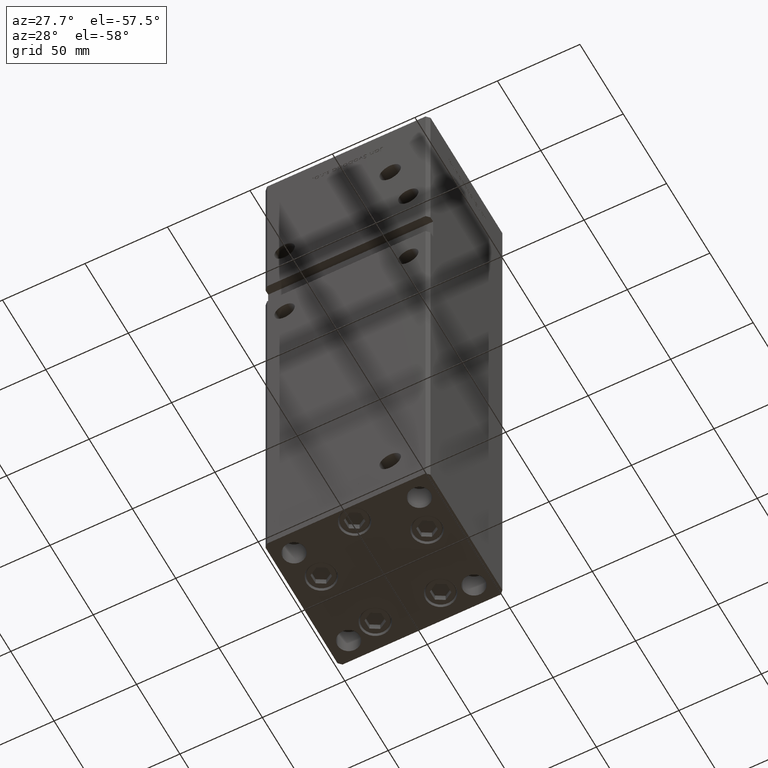
[diagram: clean part render]
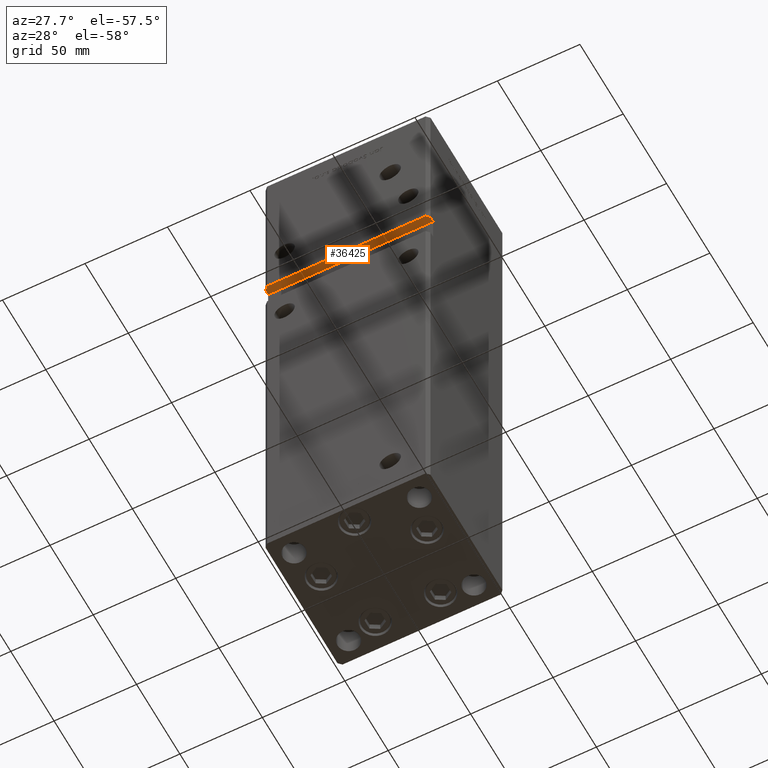
[diagram: same view with one face highlighted and labeled with its STEP entity id]
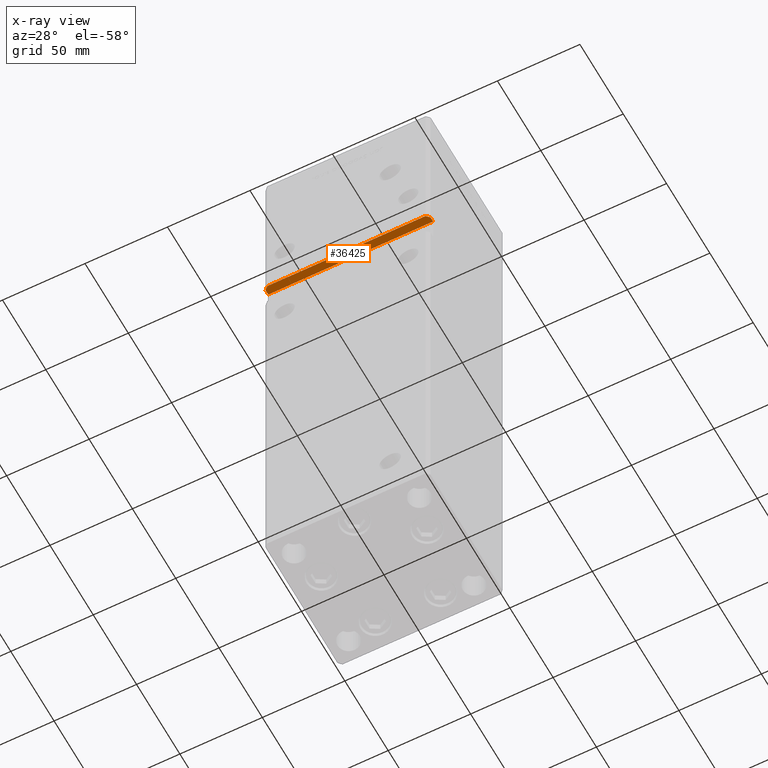
[diagram: x-ray of the same camera — body ghosted, the highlighted face saturated]
A machine part, auxiliary view. The second image highlights one B-rep face of the part: STEP entity #36425.
The next image is the same camera in x-ray: the body ghosted, the highlighted face saturated — about 0% of this face is hidden behind the body in this view.
In plain terms, the highlighted planar face has unit normal (0, 0, 1).
Its self-contained STEP definition (entity closure, byte-faithful):
#99 = VERTEX_POINT ( 'NONE', #20985 ) ;
#1074 = CARTESIAN_POINT ( 'NONE',  ( 47.99999999999995737, -43.50000000000000000, 238.0000000000000284 ) ) ;
#1755 = CARTESIAN_POINT ( 'NONE',  ( 50.00000000000000000, -38.50000000000000000, 238.0000000000000284 ) ) ;
#2436 = EDGE_CURVE ( 'NONE', #30419, #50637, #19489, .T. ) ;
#2713 = DIRECTION ( 'NONE',  ( -0.7071067811865474617, -0.7071067811865474617, 0.000000000000000000 ) ) ;
#4947 = VECTOR ( 'NONE', #40196, 1000.000000000000114 ) ;
#6646 = ORIENTED_EDGE ( 'NONE', *, *, #2436, .F. ) ;
#6835 = VERTEX_POINT ( 'NONE', #38174 ) ;
#7222 = CARTESIAN_POINT ( 'NONE',  ( -49.99999999999998579, -43.50000000000000000, 238.0000000000000284 ) ) ;
#8584 = DIRECTION ( 'NONE',  ( -1.000000000000000000, -0.000000000000000000, -0.000000000000000000 ) ) ;
#9244 = DIRECTION ( 'NONE',  ( -0.000000000000000000, -1.000000000000000000, -0.000000000000000000 ) ) ;
#9792 = AXIS2_PLACEMENT_3D ( 'NONE', #28265, #41187, #24232 ) ;
#10732 = DIRECTION ( 'NONE',  ( -1.000000000000000000, -0.000000000000000000, -0.000000000000000000 ) ) ;
#10989 = LINE ( 'NONE', #7222, #31087 ) ;
#11980 = EDGE_CURVE ( 'NONE', #21378, #6835, #29271, .T. ) ;
#12150 = FACE_OUTER_BOUND ( 'NONE', #33666, .T. ) ;
#13538 = CARTESIAN_POINT ( 'NONE',  ( -49.99999999999998579, -38.50000000000000000, 238.0000000000000284 ) ) ;
#17536 = VECTOR ( 'NONE', #9244, 1000.000000000000000 ) ;
#19489 = LINE ( 'NONE', #43700, #4947 ) ;
#20985 = CARTESIAN_POINT ( 'NONE',  ( 50.00000000000000000, -41.49999999999999289, 238.0000000000000284 ) ) ;
#21378 = VERTEX_POINT ( 'NONE', #27215 ) ;
#24232 = DIRECTION ( 'NONE',  ( 1.000000000000000000, 0.000000000000000000, -0.000000000000000000 ) ) ;
#24430 = EDGE_CURVE ( 'NONE', #49712, #50637, #10989, .T. ) ;
#24781 = PLANE ( 'NONE',  #9792 ) ;
#26071 = CARTESIAN_POINT ( 'NONE',  ( -49.99999999999998579, -41.49999999999999289, 238.0000000000000284 ) ) ;
#26161 = LINE ( 'NONE', #13538, #17536 ) ;
#27215 = CARTESIAN_POINT ( 'NONE',  ( 50.00000000000000000, -38.50000000000000000, 238.0000000000000284 ) ) ;
#27386 = VECTOR ( 'NONE', #8584, 1000.000000000000000 ) ;
#27420 = ORIENTED_EDGE ( 'NONE', *, *, #24430, .T. ) ;
#28265 = CARTESIAN_POINT ( 'NONE',  ( -49.99999999999998579, -38.50000000000000000, 238.0000000000000284 ) ) ;
#28971 = DIRECTION ( 'NONE',  ( -0.000000000000000000, -1.000000000000000000, -0.000000000000000000 ) ) ;
#29271 = LINE ( 'NONE', #33569, #27386 ) ;
#30419 = VERTEX_POINT ( 'NONE', #26071 ) ;
#31087 = VECTOR ( 'NONE', #10732, 1000.000000000000000 ) ;
#33569 = CARTESIAN_POINT ( 'NONE',  ( -49.99999999999998579, -38.50000000000000000, 238.0000000000000284 ) ) ;
#33666 = EDGE_LOOP ( 'NONE', ( #41618, #45351, #38071, #41253, #27420, #6646 ) ) ;
#34317 = EDGE_CURVE ( 'NONE', #21378, #99, #46365, .T. ) ;
#35023 = VECTOR ( 'NONE', #2713, 1000.000000000000114 ) ;
#36425 = ADVANCED_FACE ( 'NONE', ( #12150 ), #24781, .F. ) ;
#38071 = ORIENTED_EDGE ( 'NONE', *, *, #34317, .T. ) ;
#38174 = CARTESIAN_POINT ( 'NONE',  ( -49.99999999999998579, -38.50000000000000000, 238.0000000000000284 ) ) ;
#38370 = EDGE_CURVE ( 'NONE', #6835, #30419, #26161, .T. ) ;
#39540 = CARTESIAN_POINT ( 'NONE',  ( 49.99999999999998579, -41.49999999999999289, 238.0000000000000284 ) ) ;
#39755 = VECTOR ( 'NONE', #28971, 1000.000000000000000 ) ;
#40196 = DIRECTION ( 'NONE',  ( 0.7071067811865474617, -0.7071067811865474617, 0.000000000000000000 ) ) ;
#40249 = CARTESIAN_POINT ( 'NONE',  ( -47.99999999999998579, -43.50000000000000000, 238.0000000000000284 ) ) ;
#41187 = DIRECTION ( 'NONE',  ( 0.000000000000000000, 0.000000000000000000, 1.000000000000000000 ) ) ;
#41253 = ORIENTED_EDGE ( 'NONE', *, *, #52043, .T. ) ;
#41618 = ORIENTED_EDGE ( 'NONE', *, *, #38370, .F. ) ;
#43568 = LINE ( 'NONE', #39540, #35023 ) ;
#43700 = CARTESIAN_POINT ( 'NONE',  ( -49.99999999999998579, -41.49999999999999289, 238.0000000000000284 ) ) ;
#45351 = ORIENTED_EDGE ( 'NONE', *, *, #11980, .F. ) ;
#46365 = LINE ( 'NONE', #1755, #39755 ) ;
#49712 = VERTEX_POINT ( 'NONE', #1074 ) ;
#50637 = VERTEX_POINT ( 'NONE', #40249 ) ;
#52043 = EDGE_CURVE ( 'NONE', #99, #49712, #43568, .T. ) ;